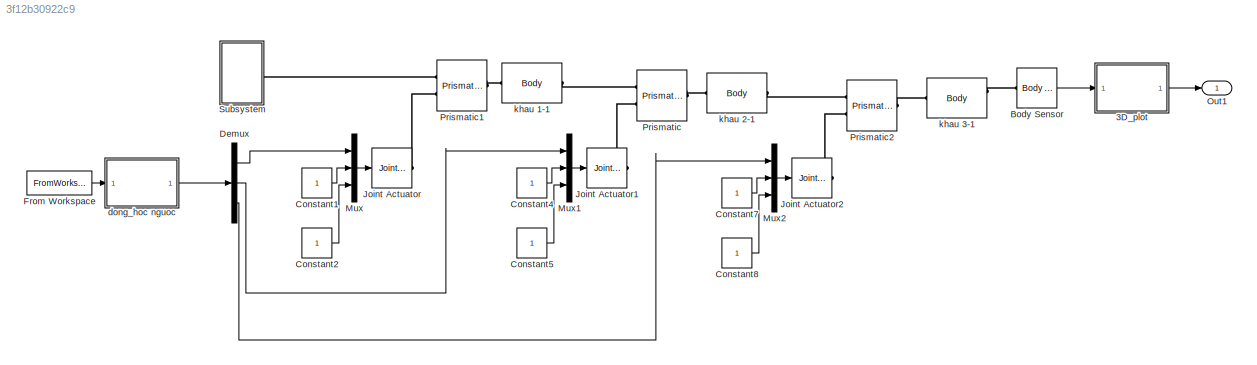
MODEL slx_3f12b30922c9
KIND model
CONFIG AbsTol = auto
CONFIG FixedStep = auto
CONFIG MaxStep = auto
CONFIG MinStep = auto
CONFIG RelTol = 1e-3
CONFIG SampleTimeConstraint = Unconstrained
CONFIG Solver = ode45
CONFIG SolverMode = Auto
CONFIG SolverName = ode45
CONFIG StartTime = 0.0
CONFIG StopTime = 322
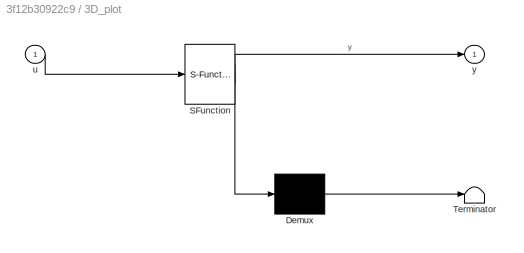
BLOCK [SubSystem] 3D_plot
  ErrorFcn = Stateflow.Translate.translate
  PermitHierarchicalResolution = ExplicitOnly
  Ports = [1, 1]
  RequestExecContextInheritance = off
  SFBlockType = MATLAB Function
  TreatAsAtomicUnit = on
BLOCK [Demux] 3D_plot/ Demux 
  Outputs = 1
  Ports = [1, 1]
BLOCK [S-Function] 3D_plot/ SFunction 
  EnableBusSupport = on
  FunctionName = sf_sfun
  PortCounts = [1 2]
  Ports = [1, 2]
  Tag = Stateflow S-Function mophong_quy_dao 2
BLOCK [Terminator] 3D_plot/ Terminator 
BLOCK [Inport] 3D_plot/u
  IconDisplay = Port number
BLOCK [Outport] 3D_plot/y
  IconDisplay = Port number
BLOCK [Reference] Body Sensor  REF=mblibv1/Sensors & 
Actuators/Body Sensor
  Acceleration = off
  AccelerationUnits = m/s^2
  ActiveIO = on
  Angle = on
  AngleUnits = deg
  ArcAcceleration = off
  ArcAccelerationUnits = deg/s^2
  ArcVelocity = off
  ArcVelocityUnits = deg/s
  ClassName = BodySensor
  CoordPosition = on
  CoordPositionUnits = mm
  DialogClass = MechanicalSensorBlock
  Muxed = on
  OutputVector = [1]
  PhysicalDomain = Mechanical
  PortType = blob
  Ports = [0, 1, 0, 0, 0, 1]
  Pose = off
  Quaternion = on
  QuaternionDDT = off
  QuaternionDT = off
  QuaternionUnits = off
  ReferenceFrame = Absolute (World)
  SourceBlock = mblibv1/Sensors & \nActuators/Body Sensor
  SourceType = Body Sensor
  UpdateFromCAD = off
  Velocity = off
  VelocityUnits = m/s
  Width = 3
BLOCK [Constant] Constant1
BLOCK [Constant] Constant2
BLOCK [Constant] Constant4
BLOCK [Constant] Constant5
BLOCK [Constant] Constant7
BLOCK [Constant] Constant8
BLOCK [Demux] Demux
  DisplayOption = bar
  Outputs = 3
  Ports = [1, 3]
BLOCK [FromWorkspace] From Workspace
  SampleTime = 0.4
  VariableName = s
  ZeroCross = on
BLOCK [Reference] Joint Actuator  REF=mblibv1/Sensors & 
Actuators/Joint Actuator
  AccelerationUnits = m/s^2
  ActiveIO = on
  ActuationStyle = Motion
  AngleUnits = deg
  ArcAccelerationUnits = deg/s^2
  ArcVelocityUnits = deg/s
  ClassName = JointActuator
  CoordPositionUnits = mm
  DialogClass = MechanicalActuatorBlock
  ForceUnits = N
  PhysicalDomain = Mechanical
  PortType = blob
  Ports = [1, 0, 0, 0, 0, 0, 1]
  Primitive = P1
  ReferenceFrame = Absolute (World)
  SourceBlock = mblibv1/Sensors & \nActuators/Joint Actuator
  SourceType = Joint Actuator
  TorqueUnits = N*m
  UpdateFromCAD = off
  VelocityUnits = m/s
  Width = 3
BLOCK [Reference] Joint Actuator1  REF=mblibv1/Sensors & 
Actuators/Joint Actuator
  AccelerationUnits = m/s^2
  ActiveIO = on
  ActuationStyle = Motion
  AngleUnits = deg
  ArcAccelerationUnits = deg/s^2
  ArcVelocityUnits = deg/s
  ClassName = JointActuator
  CoordPositionUnits = mm
  DialogClass = MechanicalActuatorBlock
  ForceUnits = N
  PhysicalDomain = Mechanical
  PortType = blob
  Ports = [1, 0, 0, 0, 0, 0, 1]
  Primitive = P1
  ReferenceFrame = Absolute (World)
  SourceBlock = mblibv1/Sensors & \nActuators/Joint Actuator
  SourceType = Joint Actuator
  TorqueUnits = N*m
  UpdateFromCAD = off
  VelocityUnits = m/s
  Width = 3
BLOCK [Reference] Joint Actuator2  REF=mblibv1/Sensors & 
Actuators/Joint Actuator
  AccelerationUnits = m/s^2
  ActiveIO = on
  ActuationStyle = Motion
  AngleUnits = deg
  ArcAccelerationUnits = deg/s^2
  ArcVelocityUnits = deg/s
  ClassName = JointActuator
  CoordPositionUnits = mm
  DialogClass = MechanicalActuatorBlock
  ForceUnits = N
  PhysicalDomain = Mechanical
  PortType = blob
  Ports = [1, 0, 0, 0, 0, 0, 1]
  Primitive = P1
  ReferenceFrame = Absolute (World)
  SourceBlock = mblibv1/Sensors & \nActuators/Joint Actuator
  SourceType = Joint Actuator
  TorqueUnits = N*m
  UpdateFromCAD = off
  VelocityUnits = m/s
  Width = 3
BLOCK [Mux] Mux
  DisplayOption = bar
  Inputs = 3
  Ports = [3, 1]
BLOCK [Mux] Mux1
  DisplayOption = bar
  Inputs = 3
  Ports = [3, 1]
BLOCK [Mux] Mux2
  DisplayOption = bar
  Inputs = 3
  Ports = [3, 1]
BLOCK [Outport] Out1
  IconDisplay = Port number
BLOCK [Reference] Prismatic  REF=mblibv1/Joints/Prismatic
  ClassName = Joint
  CutJoint = off
  DialogClass = JointBlock
  LConnTagsString = __newl0|SA1
  MarkAsCut = off
  NumSAPorts = 1
  P1Axis = [-1,0,0]
  PMImportedID = khau 1-1:-:khau 2-1
  Ports = [0, 0, 0, 0, 0, 2, 1]
  PrimitiveProps = P1$World$[-1,0,0]$prismatic
  Primitives = prismatic
  RConnTagsString = __newr0
  SourceBlock = mblibv1/Joints/Prismatic
  SourceType = Prismatic
  UpdateFromCAD = on
BLOCK [Reference] Prismatic1  REF=mblibv1/Joints/Prismatic
  ClassName = Joint
  CutJoint = off
  DialogClass = JointBlock
  LConnTagsString = __newl0|SA1
  MarkAsCut = off
  NumSAPorts = 1
  P1Axis = [0,0,1]
  PMImportedID = khau 0-1:-:khau 1-1
  Ports = [0, 0, 0, 0, 0, 2, 1]
  PrimitiveProps = P1$World$[0,0,1]$prismatic
  Primitives = prismatic
  RConnTagsString = __newr0
  SourceBlock = mblibv1/Joints/Prismatic
  SourceType = Prismatic
  UpdateFromCAD = on
BLOCK [Reference] Prismatic2  REF=mblibv1/Joints/Prismatic
  ClassName = Joint
  CutJoint = off
  DialogClass = JointBlock
  LConnTagsString = __newl0|SA1
  MarkAsCut = off
  NumSAPorts = 1
  P1Axis = [0,-1,0]
  PMImportedID = khau 2-1:-:khau 3-1
  Ports = [0, 0, 0, 0, 0, 2, 1]
  PrimitiveProps = P1$World$[0,-1,0]$prismatic
  Primitives = prismatic
  RConnTagsString = __newr0
  SourceBlock = mblibv1/Joints/Prismatic
  SourceType = Prismatic
  UpdateFromCAD = on
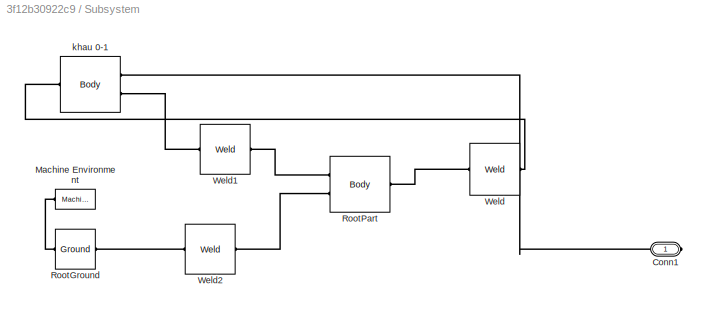
BLOCK [SubSystem] Subsystem
  Ports = [0, 0, 0, 0, 0, 0, 1]
  RequestExecContextInheritance = off
BLOCK [PMIOPort] Subsystem/Conn1
  Port = 1
  Side = Right
BLOCK [Reference] Subsystem/Machine Environment  REF=mblibv1/Bodies/Machine
Environment
  AnalysisType = Forward dynamics
  AngularAssemblyTolerance = 1e-3
  AngularAssemblyToleranceUnits = rad
  BodyColorSelMode = Use model default
  BodyVisualizationType = Use model default body geometries
  ClassName = Environment
  ConstraintAbsTolerance = 1e-4
  ConstraintRelTolerance = 1e-4
  ConstraintSolverType = Stabilizing
  DefaultBodyColor = [1 0 0]
  DialogTemplateClass = MECH.MachineEnvironment
  Dimensionality = Auto-detect
  Gravity = [0 -9.81 0]
  GravityAsSignal = off
  GravityUnits = m/s^2
  LinearAssemblyTolerance = 1e-3
  LinearAssemblyToleranceUnits = m
  PerturbationSize = 1e-5
  PhysicalDomain = Mechanical
  PortType = env
  Ports = [0, 0, 0, 0, 0, 0, 1]
  RedundancyAnalysisTolerance = 1e-14
  RedundancyAnalysisToleranceType = Automatically select tolerance
  SourceBlock = mblibv1/Bodies/Machine\nEnvironment
  SourceType = Machine Environment
  StatePerturbationType = Fixed
  SyncWhenCopied = off
  UseRobustSingularityHandling = off
  VisualizeMachine = on
BLOCK [Reference] Subsystem/RootGround  REF=mblibv1/Bodies/Ground
  ClassName = Ground
  CoordPosition = [0.0188363,-0.0133914,0.352544]
  CoordPositionUnits = m
  DialogClass = GroundBlock
  LeftPortType = env
  MachineId = [1 0]
  PMImportedID = RootGround
  ParameterChecksum = [2388317299, 529211876, 2012815551, 1180572592]
  PhysicalDomain = Mechanical
  Ports = [0, 0, 0, 0, 0, 1, 1]
  RightPortType = workingframe
  ShowEnvPort = on
  SourceBlock = mblibv1/Bodies/Ground
  SourceType = Ground
  StateVectorMgrId = 0
  TopologyChecksum = [3572386912, 2938984299, 652651862, 2599928849]
  UpdateFromCAD = on
  UserDataPersistent = on
BLOCK [Reference] Subsystem/RootPart  REF=mblibv1/Bodies/Body
  AttachedToCS = CS1
  BodyColor = [1;0;0]
  BodyColorSelMode = MACHINE_DEFAULT
  CG = Right$CG$[0.0188363 -0.0133914 0.352544]$WORLD$WORLD$m$[1 0 0;0 1 0;0 0 1]$3x3 Transform$rad$WORLD$false$lap/RootPart::CG(AUTOGEN)
  CGPos = [0.0188363 -0.0133914 0.352544]
  CGRot = [1 0 0;0 1 0;0 0 1]
  CS0Pos = []
  CS0Rot = []
  CS10Pos = []
  CS10Rot = []
  CS11Pos = []
  CS11Rot = []
  CS12Pos = []
  CS12Rot = []
  CS13Pos = []
  CS13Rot = []
  CS14Pos = []
  CS14Rot = []
  CS15Pos = []
  CS15Rot = []
  CS16Pos = []
  CS16Rot = []
  CS17Pos = []
  CS17Rot = []
  CS18Pos = []
  CS18Rot = []
  CS19Pos = []
  CS19Rot = []
  CS1Pos = [0 0 0]
  CS1Rot = [1 0 0;0 1 0;0 0 1]
  CS20Pos = []
  CS20Rot = []
  CS2Pos = [-0.102063 0 0.46]
  CS2Rot = [1 0 0;0 1 0;0 0 1]
  CS3Pos = [-0.102063 0 0.46]
  CS3Rot = [1 0 0;0 1 0;0 0 1]
  CS4Pos = [0.0188363 -0.0133914 0.352544]
  CS4Rot = [1 0 0;0 1 0;0 0 1]
  CS5Pos = []
  CS5Rot = []
  CS6Pos = []
  CS6Rot = []
  CS7Pos = []
  CS7Rot = []
  CS8Pos = []
  CS8Rot = []
  CS9Pos = []
  CS9Rot = []
  ClassName = Body
  Density = 1
  DensityUnits = kg/m^3
  DensityUse = false
  DialogClass = MechanicalBodyBlock
  GraphicsMode = MACHINE_DEFAULT
  Inertia = [0,0,0;0,0,0;0,0,0]
  InertiaUnits = kg*m^2
  LConnTagsString = CS3|CS4
  Mass = 0
  MassUnits = kg
  PMImportedID = lap/RootPart
  Ports = [0, 0, 0, 0, 0, 2, 1]
  RConnTagsString = CS2
  Shape = Cylinder
  ShapeDims = [1 1]
  ShapeUnits = m
  ShapeUse = false
  SourceBlock = mblibv1/Bodies/Body
  SourceType = Body
  UpdateFromCAD = on
  WorkingFrames = Right$CS1$[0 0 0]$WORLD$WORLD$m$[1 0 0;0 1 0;0 0 1]$3x3 Transform$rad$WORLD$false$lap/RootPart::CS1(AUTOGEN)#Right$CS2$[-0.102063 0 0.46]$WORLD$WORLD$m$[1 0 0;0 1 0;0 0 1]$3x3 Transform$rad$WORLD$true$khau 0-1:-:lap/RootPart::lap/RootPart(AUTOGEN)#Left$CS3$[-0.102063 0 0.46]$WORLD$WORLD$m$[1 0 0;0 1 0;0 0 1]$3x3 Transform$rad$WORLD$true$:-:khau 0-1::lap/RootPart(AUTOGEN)#Left$CS4$[0.0188363 -0.013...<+126ch>
BLOCK [Reference] Subsystem/Weld  REF=mblibv1/Joints/Weld
  ClassName = Joint
  CutJoint = off
  DialogClass = JointBlock
  LConnTagsString = __newl0
  MarkAsCut = off
  NumSAPorts = 0
  PMImportedID = khau 0-1:-:lap/RootPart
  Ports = [0, 0, 0, 0, 0, 1, 1]
  PrimitiveProps = W$World$[0.57735,0.57735,0.57735]$weld
  Primitives = weld
  RConnTagsString = __newr0
  SourceBlock = mblibv1/Joints/Weld
  SourceType = Weld
  UpdateFromCAD = on
  WAxis = [0.57735,0.57735,0.57735]
BLOCK [Reference] Subsystem/Weld1  REF=mblibv1/Joints/Weld
  ClassName = Joint
  CutJoint = off
  DialogClass = JointBlock
  LConnTagsString = __newl0
  MarkAsCut = off
  NumSAPorts = 0
  PMImportedID = :-:khau 0-1
  Ports = [0, 0, 0, 0, 0, 1, 1]
  PrimitiveProps = W$WORLD$[0.57735,0.57735,0.57735]$weld
  Primitives = weld
  RConnTagsString = __newr0
  SourceBlock = mblibv1/Joints/Weld
  SourceType = Weld
  UpdateFromCAD = on
  WAxis = [0.57735,0.57735,0.57735]
BLOCK [Reference] Subsystem/Weld2  REF=mblibv1/Joints/Weld
  ClassName = Joint
  CutJoint = off
  DialogClass = JointBlock
  LConnTagsString = __newl0
  MarkAsCut = off
  NumSAPorts = 0
  PMImportedID = RootGround:-:lap/RootPart
  Ports = [0, 0, 0, 0, 0, 1, 1]
  PrimitiveProps = W$WORLD$[0.57735,0.57735,0.57735]$weld
  Primitives = weld
  RConnTagsString = __newr0
  SourceBlock = mblibv1/Joints/Weld
  SourceType = Weld
  UpdateFromCAD = on
  WAxis = [0.57735,0.57735,0.57735]
BLOCK [Reference] Subsystem/khau 0-1  REF=mblibv1/Bodies/Body
  AttachedToCS = CS1
  BodyColor = [1;1;0]
  BodyColorSelMode = COLORPALETTE
  CG = Right$CG$[-0.102063 0 0.46]$WORLD$WORLD$m$[1 0 0;0 1 0;0 0 1]$3x3 Transform$rad$WORLD$false$khau 0-1::CG(AUTOGEN)
  CGPos = [-0.102063 0 0.46]
  CGRot = [1 0 0;0 1 0;0 0 1]
  CS0Pos = []
  CS0Rot = []
  CS10Pos = []
  CS10Rot = []
  CS11Pos = []
  CS11Rot = []
  CS12Pos = []
  CS12Rot = []
  CS13Pos = []
  CS13Rot = []
  CS14Pos = []
  CS14Rot = []
  CS15Pos = []
  CS15Rot = []
  CS16Pos = []
  CS16Rot = []
  CS17Pos = []
  CS17Rot = []
  CS18Pos = []
  CS18Rot = []
  CS19Pos = []
  CS19Rot = []
  CS1Pos = [0 0 0]
  CS1Rot = [1 0 0;0 1 0;0 0 1]
  CS20Pos = []
  CS20Rot = []
  CS2Pos = [-0.102063 0 0.46]
  CS2Rot = [1 0 0;0 1 0;0 0 1]
  CS3Pos = [-0.05 0.05 0.92]
  CS3Rot = [1 0 0;0 1 0;0 0 1]
  CS4Pos = [-0.102063 0 0.46]
  CS4Rot = [1 0 0;0 1 0;0 0 1]
  CS5Pos = []
  CS5Rot = []
  CS6Pos = []
  CS6Rot = []
  CS7Pos = []
  CS7Rot = []
  CS8Pos = []
  CS8Rot = []
  CS9Pos = []
  CS9Rot = []
  ClassName = Body
  Density = 1
  DensityUnits = kg/m^3
  DensityUse = false
  DialogClass = MechanicalBodyBlock
  GraphicsFileName = lap - khau 0-1.STL
  GraphicsMode = GFXFILE
  Inertia = [0.0366621,0,0;0,0.0391956,0;0,0,0.0032657]
  InertiaUnits = kg*m^2
  LConnTagsString = CS2
  Mass = 0.184586
  MassUnits = kg
  PMImportedID = khau 0-1
  Ports = [0, 0, 0, 0, 0, 1, 2]
  RConnTagsString = CS3|CS4
  Shape = Cylinder
  ShapeDims = [1 1]
  ShapeUnits = m
  ShapeUse = false
  SourceBlock = mblibv1/Bodies/Body
  SourceType = Body
  UpdateFromCAD = on
  WorkingFrames = Right$CS1$[0 0 0]$WORLD$WORLD$m$[1 0 0;0 1 0;0 0 1]$3x3 Transform$rad$WORLD$false$khau 0-1::CS1(AUTOGEN)#Left$CS2$[-0.102063 0 0.46]$WORLD$WORLD$m$[1 0 0;0 1 0;0 0 1]$3x3 Transform$rad$WORLD$true$khau 0-1:-:lap/RootPart::khau 0-1(AUTOGEN)#Right$CS3$[-0.05 0.05 0.92]$WORLD$WORLD$m$[1 0 0;0 1 0;0 0 1]$3x3 Transform$rad$WORLD$true$khau 0-1:-:khau 1-1::khau 0-1(AUTOGEN)#Right$CS4$[-0.102063 0 0.46]$WO...<+91ch>
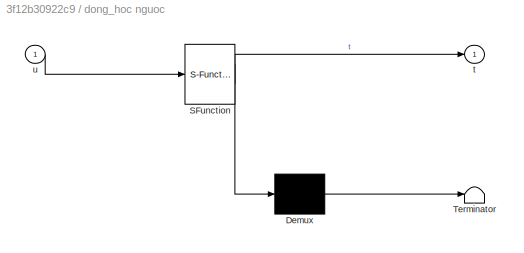
BLOCK [SubSystem] dong_hoc nguoc
  ErrorFcn = Stateflow.Translate.translate
  PermitHierarchicalResolution = ExplicitOnly
  Ports = [1, 1]
  RequestExecContextInheritance = off
  SFBlockType = MATLAB Function
  TreatAsAtomicUnit = on
BLOCK [Demux] dong_hoc nguoc/ Demux 
  Outputs = 1
  Ports = [1, 1]
BLOCK [S-Function] dong_hoc nguoc/ SFunction 
  EnableBusSupport = on
  FunctionName = sf_sfun
  PortCounts = [1 2]
  Ports = [1, 2]
  Tag = Stateflow S-Function mophong_quy_dao 4
BLOCK [Terminator] dong_hoc nguoc/ Terminator 
BLOCK [Outport] dong_hoc nguoc/t
  IconDisplay = Port number
BLOCK [Inport] dong_hoc nguoc/u
  IconDisplay = Port number
BLOCK [Reference] khau 1-1  REF=mblibv1/Bodies/Body
  AttachedToCS = CS1
  BodyColor = [0;0.501961;1]
  BodyColorSelMode = COLORPALETTE
  CG = Right$CG$[0.225672 0 0.06]$WORLD$WORLD$m$[0 0 1;-1 0 0;0 -1 0]$3x3 Transform$rad$WORLD$false$khau 1-1::CG(AUTOGEN)
  CGPos = [0.225672 0 0.06]
  CGRot = [0 0 1;-1 0 0;0 -1 0]
  CS0Pos = []
  CS0Rot = []
  CS10Pos = []
  CS10Rot = []
  CS11Pos = []
  CS11Rot = []
  CS12Pos = []
  CS12Rot = []
  CS13Pos = []
  CS13Rot = []
  CS14Pos = []
  CS14Rot = []
  CS15Pos = []
  CS15Rot = []
  CS16Pos = []
  CS16Rot = []
  CS17Pos = []
  CS17Rot = []
  CS18Pos = []
  CS18Rot = []
  CS19Pos = []
  CS19Rot = []
  CS1Pos = [0 0 0.06]
  CS1Rot = [0 0 1;-1 0 0;0 -1 0]
  CS20Pos = []
  CS20Rot = []
  CS2Pos = [0.48 -0.04 0.1]
  CS2Rot = [1 0 0;0 1 0;0 0 1]
  CS3Pos = [-0.05 0.05 0.12]
  CS3Rot = [1 0 0;0 1 0;0 0 1]
  CS4Pos = []
  CS4Rot = []
  CS5Pos = []
  CS5Rot = []
  CS6Pos = []
  CS6Rot = []
  CS7Pos = []
  CS7Rot = []
  CS8Pos = []
  CS8Rot = []
  CS9Pos = []
  CS9Rot = []
  ClassName = Body
  Density = 1
  DensityUnits = kg/m^3
  DensityUse = false
  DialogClass = MechanicalBodyBlock
  GraphicsFileName = lap - khau 1-1.STL
  GraphicsMode = GFXFILE
  Inertia = [0.000583644,0,0;0,0.000587076,0;0,0,3.56803e-05]
  InertiaUnits = kg*m^2
  LConnTagsString = CS3
  Mass = 0.0250848
  MassUnits = kg
  PMImportedID = khau 1-1
  Ports = [0, 0, 0, 0, 0, 1, 1]
  RConnTagsString = CS2
  Shape = Cylinder
  ShapeDims = [1 1]
  ShapeUnits = m
  ShapeUse = false
  SourceBlock = mblibv1/Bodies/Body
  SourceType = Body
  UpdateFromCAD = on
  WorkingFrames = Right$CS1$[0 0 0.06]$WORLD$WORLD$m$[0 0 1;-1 0 0;0 -1 0]$3x3 Transform$rad$WORLD$false$khau 1-1::CS1(AUTOGEN)#Right$CS2$[0.48 -0.04 0.1]$WORLD$WORLD$m$[1 0 0;0 1 0;0 0 1]$3x3 Transform$rad$WORLD$true$khau 1-1:-:khau 2-1::khau 1-1(AUTOGEN)#Left$CS3$[-0.05 0.05 0.12]$WORLD$WORLD$m$[1 0 0;0 1 0;0 0 1]$3x3 Transform$rad$WORLD$true$khau 0-1:-:khau 1-1::khau 1-1(AUTOGEN)
BLOCK [Reference] khau 2-1  REF=mblibv1/Bodies/Body
  AttachedToCS = CS1
  BodyColor = [0.901961;0.709804;0.439216]
  BodyColorSelMode = COLORPALETTE
  CG = Right$CG$[0.42 -0.0425466 0.06]$WORLD$WORLD$m$[0 1 0;0 0 -1;-1 0 0]$3x3 Transform$rad$WORLD$false$khau 2-1::CG(AUTOGEN)
  CGPos = [0.42 -0.0425466 0.06]
  CGRot = [0 1 0;0 0 -1;-1 0 0]
  CS0Pos = []
  CS0Rot = []
  CS10Pos = []
  CS10Rot = []
  CS11Pos = []
  CS11Rot = []
  CS12Pos = []
  CS12Rot = []
  CS13Pos = []
  CS13Rot = []
  CS14Pos = []
  CS14Rot = []
  CS15Pos = []
  CS15Rot = []
  CS16Pos = []
  CS16Rot = []
  CS17Pos = []
  CS17Rot = []
  CS18Pos = []
  CS18Rot = []
  CS19Pos = []
  CS19Rot = []
  CS1Pos = [0.42 0 0.06]
  CS1Rot = [0 1 0;0 0 -1;-1 0 0]
  CS20Pos = []
  CS20Rot = []
  CS2Pos = [0.32 -0.04 0.1]
  CS2Rot = [1 0 0;0 1 0;0 0 1]
  CS3Pos = [0.395 -0.06 0.085]
  CS3Rot = [1 0 0;0 1 0;0 0 1]
  CS4Pos = []
  CS4Rot = []
  CS5Pos = []
  CS5Rot = []
  CS6Pos = []
  CS6Rot = []
  CS7Pos = []
  CS7Rot = []
  CS8Pos = []
  CS8Rot = []
  CS9Pos = []
  CS9Rot = []
  ClassName = Body
  Density = 1
  DensityUnits = kg/m^3
  DensityUse = false
  DialogClass = MechanicalBodyBlock
  GraphicsFileName = lap - khau 2-1.STL
  GraphicsMode = GFXFILE
  Inertia = [0.00271366,0,0;0,0.00271765,0;0,0,7.5687e-05]
  InertiaUnits = kg*m^2
  LConnTagsString = CS2
  Mass = 0.0401856
  MassUnits = kg
  PMImportedID = khau 2-1
  Ports = [0, 0, 0, 0, 0, 1, 1]
  RConnTagsString = CS3
  Shape = Cylinder
  ShapeDims = [1 1]
  ShapeUnits = m
  ShapeUse = false
  SourceBlock = mblibv1/Bodies/Body
  SourceType = Body
  UpdateFromCAD = on
  WorkingFrames = Right$CS1$[0.42 0 0.06]$WORLD$WORLD$m$[0 1 0;0 0 -1;-1 0 0]$3x3 Transform$rad$WORLD$false$khau 2-1::CS1(AUTOGEN)#Left$CS2$[0.32 -0.04 0.1]$WORLD$WORLD$m$[1 0 0;0 1 0;0 0 1]$3x3 Transform$rad$WORLD$true$khau 1-1:-:khau 2-1::khau 2-1(AUTOGEN)#Right$CS3$[0.395 -0.06 0.085]$WORLD$WORLD$m$[1 0 0;0 1 0;0 0 1]$3x3 Transform$rad$WORLD$true$khau 2-1:-:khau 3-1::khau 2-1(AUTOGEN)
BLOCK [Reference] khau 3-1  REF=mblibv1/Bodies/Body
  AttachedToCS = CS1
  BodyColor = [0.28628 0.66275 0.32941]
  BodyColorSelMode = COLORPALETTE
  CG = Right$CG$[0.416709 -0.66 0.06]$WORLD$WORLD$m$[-1 0 0;0 1 0;0 0 -1]$3x3 Transform$rad$WORLD$true$khau 3-1::CG(AUTOGEN)
  CGPos = [0.416709 -0.66 0.06]
  CGRot = [-1 0 0;0 1 0;0 0 -1]
  CS0Pos = []
  CS0Rot = []
  CS10Pos = []
  CS10Rot = []
  CS11Pos = []
  CS11Rot = []
  CS12Pos = []
  CS12Rot = []
  CS13Pos = []
  CS13Rot = []
  CS14Pos = []
  CS14Rot = []
  CS15Pos = []
  CS15Rot = []
  CS16Pos = []
  CS16Rot = []
  CS17Pos = []
  CS17Rot = []
  CS18Pos = []
  CS18Rot = []
  CS19Pos = []
  CS19Rot = []
  CS1Pos = [0.31 -0.66 0.06]
  CS1Rot = [-1 0 0;0 1 0;0 0 -1]
  CS20Pos = []
  CS20Rot = []
  CS2Pos = [0.395 -0.72 0.085]
  CS2Rot = [1 0 0;0 1 0;0 0 1]
  CS3Pos = []
  CS3Rot = []
  CS4Pos = []
  CS4Rot = []
  CS5Pos = []
  CS5Rot = []
  CS6Pos = []
  CS6Rot = []
  CS7Pos = []
  CS7Rot = []
  CS8Pos = []
  CS8Rot = []
  CS9Pos = []
  CS9Rot = []
  ClassName = Body
  Density = 1
  DensityUnits = kg/m^3
  DensityUse = false
  DialogClass = MechanicalBodyBlock
  GraphicsFileName = lap - khau 3-1.STL
  GraphicsMode = GFXFILE
  Inertia = [3.10671e-06,0,0;0,4.33218e-06,0;0,0,3.82518e-06]
  InertiaUnits = kg*m^2
  LConnTagsString = CS2
  Mass = 0.00253036
  MassUnits = kg
  PMImportedID = khau 3-1
  Ports = [0, 0, 0, 0, 0, 1, 2]
  RConnTagsString = CG|CS1
  Shape = Cylinder
  ShapeDims = [1 1]
  ShapeUnits = m
  ShapeUse = false
  SourceBlock = mblibv1/Bodies/Body
  SourceType = Body
  UpdateFromCAD = on
  WorkingFrames = Right$CS1$[0.31 -0.66 0.06]$WORLD$WORLD$m$[-1 0 0;0 1 0;0 0 -1]$3x3 Transform$rad$WORLD$true$khau 3-1::CS1(AUTOGEN)#Left$CS2$[0.395 -0.72 0.085]$WORLD$WORLD$m$[1 0 0;0 1 0;0 0 1]$3x3 Transform$rad$WORLD$true$khau 2-1:-:khau 3-1::khau 3-1(AUTOGEN)
LINE 3D_plot:1 -> Out1:1
LINE Body Sensor:1 -> 3D_plot:1
LINE Constant1:1 -> Mux:2
LINE Constant2:1 -> Mux:3
LINE Constant4:1 -> Mux1:2
LINE Constant5:1 -> Mux1:3
LINE Constant7:1 -> Mux2:2
LINE Constant8:1 -> Mux2:3
LINE Demux:1 -> Mux:1
LINE Demux:2 -> Mux1:1
LINE Demux:3 -> Mux2:1
LINE From Workspace:1 -> dong_hoc nguoc:1
LINE Mux1:1 -> Joint Actuator1:1
LINE Mux2:1 -> Joint Actuator2:1
LINE Mux:1 -> Joint Actuator:1
LINE dong_hoc nguoc:1 -> Demux:1
PLINE Body Sensor:LConn1 -- khau 3-1:RConn1
PLINE Joint Actuator1:RConn1 -- Prismatic:LConn2
PLINE Joint Actuator2:RConn1 -- Prismatic2:LConn2
PLINE Joint Actuator:RConn1 -- Prismatic1:LConn2
PLINE Prismatic1:LConn1 -- Subsystem:RConn1
PLINE Prismatic1:RConn1 -- khau 1-1:LConn1
PLINE Prismatic2:LConn1 -- khau 2-1:RConn1
PLINE Prismatic2:RConn1 -- khau 3-1:LConn1
PLINE Prismatic:LConn1 -- khau 1-1:RConn1
PLINE Prismatic:RConn1 -- khau 2-1:LConn1
PLINE Subsystem/Conn1:RConn1 -- Subsystem/khau 0-1:RConn1
PLINE Subsystem/Machine Environment:RConn1 -- Subsystem/RootGround:LConn1
PLINE Subsystem/RootGround:RConn1 -- Subsystem/Weld2:LConn1
PLINE Subsystem/RootPart:LConn1 -- Subsystem/Weld1:RConn1
PLINE Subsystem/RootPart:LConn2 -- Subsystem/Weld2:RConn1
PLINE Subsystem/RootPart:RConn1 -- Subsystem/Weld:LConn1
PLINE Subsystem/Weld1:LConn1 -- Subsystem/khau 0-1:RConn2
PLINE Subsystem/Weld:RConn1 -- Subsystem/khau 0-1:LConn1
CHART 3D_plot states=1 transitions=1
  STATE_LABEL 'eML_blk_kernel()'
  STATE_LABEL "SCRIPT:\nfunction y = fcn(u)\n%#codegen\nx1=u(1,1)\nx2=u(2,1)\nx3=u(3,1)\nplot3(-x3,x2,x1,'b.');\nhold on;\ngrid on\ny = u;"
CHART dong_hoc nguoc states=1 transitions=1
  STATE_LABEL 'eML_blk_kernel()'
  STATE_LABEL 'SCRIPT:\nfunction t = fcn(u)\n%#codegen\nx=u(1);\ny=u(2);\nz=u(3);\nvx=u(4);\nvy=u(5);\nvz=u(6);\nax=u(7);\nay=u(8);\naz=u(9)\nd1=60;\nd2=360;\nd3=620;\na3=110;\nt1=z-d1;\nt2=-x+d2-a3;\nt3=-y-d3;\n\nt1_dot=vz;\nt2_dot=-vx;\nt3_dot=-vy;\n\nt1_2dot=az;\nt2_2dot=-ax;\nt3_2dot=-ay;\nt=[t1 t2 t3 ]\n'
